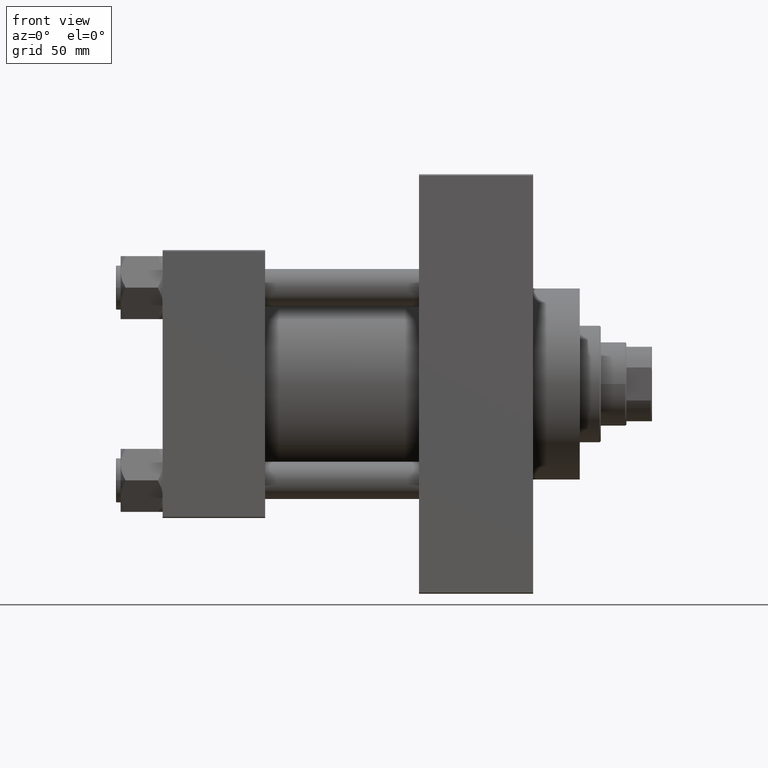
[diagram: clean part render]
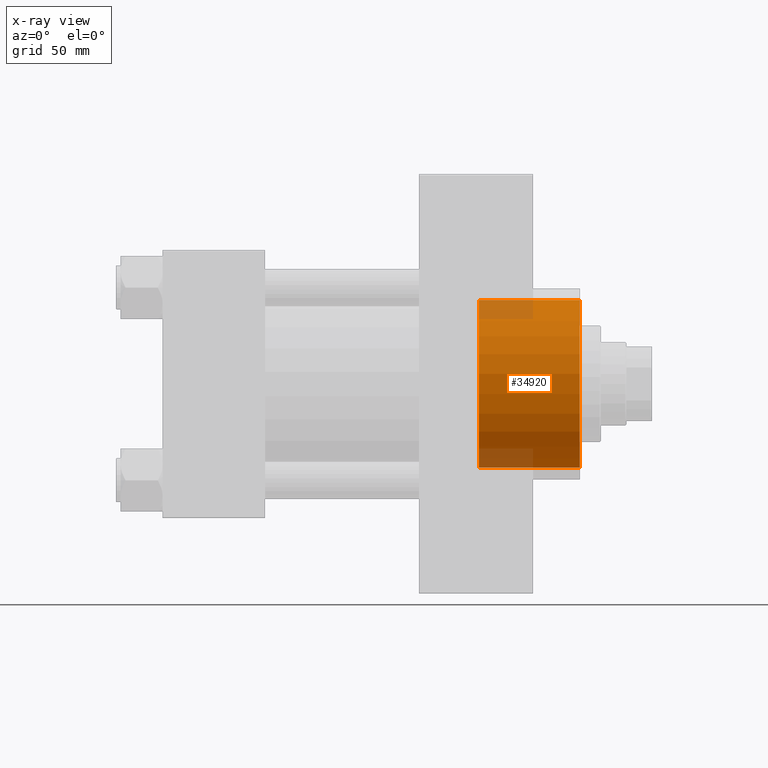
[diagram: x-ray — body ghosted, one internal face saturated and labeled with its STEP entity id]
A machine part, front view, then the same camera in x-ray: the body is ghosted and one INTERNAL B-rep face — a face not visible from any outside direction — is saturated and labeled: STEP entity #34920.
In plain terms, the highlighted cylindrical surface (partial cylindrical patch) has radius 36 mm, axis along (1, 0, 0).
Its self-contained STEP definition (entity closure, byte-faithful):
#2108 = DIRECTION ( 'NONE',  ( 1.000000000000000000, -0.000000000000000000, -0.000000000000000000 ) ) ;
#2164 = VECTOR ( 'NONE', #22269, 1000.000000000000000 ) ;
#3710 = LINE ( 'NONE', #33093, #2164 ) ;
#4273 = AXIS2_PLACEMENT_3D ( 'NONE', #8855, #27394, #12947 ) ;
#5939 = CARTESIAN_POINT ( 'NONE',  ( 135.7400000000000091, 0.000000000000000000, -36.00000000000000000 ) ) ;
#6508 = VERTEX_POINT ( 'NONE', #5939 ) ;
#7086 = DIRECTION ( 'NONE',  ( 0.000000000000000000, 0.000000000000000000, -1.000000000000000000 ) ) ;
#7631 = DIRECTION ( 'NONE',  ( 1.000000000000000000, -0.000000000000000000, -0.000000000000000000 ) ) ;
#8855 = CARTESIAN_POINT ( 'NONE',  ( 135.7400000000000091, 0.000000000000000000, 0.000000000000000000 ) ) ;
#9344 = FACE_OUTER_BOUND ( 'NONE', #35450, .T. ) ;
#10895 = EDGE_CURVE ( 'NONE', #18528, #6508, #13485, .T. ) ;
#12947 = DIRECTION ( 'NONE',  ( 0.000000000000000000, 0.000000000000000000, -1.000000000000000000 ) ) ;
#13485 = CIRCLE ( 'NONE', #4273, 36.00000000000000000 ) ;
#15040 = DIRECTION ( 'NONE',  ( 1.000000000000000000, 0.000000000000000000, 0.000000000000000000 ) ) ;
#15936 = CARTESIAN_POINT ( 'NONE',  ( 135.7400000000000091, 0.000000000000000000, 0.000000000000000000 ) ) ;
#18243 = CARTESIAN_POINT ( 'NONE',  ( 135.7400000000000091, 4.408728476930470856E-15, 36.00000000000000000 ) ) ;
#18528 = VERTEX_POINT ( 'NONE', #40433 ) ;
#19308 = ORIENTED_EDGE ( 'NONE', *, *, #26384, .F. ) ;
#20680 = VECTOR ( 'NONE', #7631, 1000.000000000000000 ) ;
#21566 = CARTESIAN_POINT ( 'NONE',  ( 179.0000000000000000, 0.000000000000000000, 0.000000000000000000 ) ) ;
#22269 = DIRECTION ( 'NONE',  ( 1.000000000000000000, -0.000000000000000000, -0.000000000000000000 ) ) ;
#25383 = VERTEX_POINT ( 'NONE', #47036 ) ;
#26310 = DIRECTION ( 'NONE',  ( 0.000000000000000000, 0.000000000000000000, -1.000000000000000000 ) ) ;
#26384 = EDGE_CURVE ( 'NONE', #6508, #25383, #3710, .T. ) ;
#27394 = DIRECTION ( 'NONE',  ( 1.000000000000000000, 0.000000000000000000, 0.000000000000000000 ) ) ;
#29475 = CIRCLE ( 'NONE', #30236, 36.00000000000000000 ) ;
#29549 = LINE ( 'NONE', #18243, #20680 ) ;
#30036 = ORIENTED_EDGE ( 'NONE', *, *, #43958, .T. ) ;
#30236 = AXIS2_PLACEMENT_3D ( 'NONE', #21566, #15040, #7086 ) ;
#31826 = EDGE_CURVE ( 'NONE', #18528, #41459, #29549, .T. ) ;
#33093 = CARTESIAN_POINT ( 'NONE',  ( 135.7400000000000091, 0.000000000000000000, -36.00000000000000000 ) ) ;
#34920 = ADVANCED_FACE ( 'NONE', ( #9344 ), #37639, .F. ) ;
#35450 = EDGE_LOOP ( 'NONE', ( #36582, #41690, #30036, #19308 ) ) ;
#36582 = ORIENTED_EDGE ( 'NONE', *, *, #10895, .F. ) ;
#37639 = CYLINDRICAL_SURFACE ( 'NONE', #43112, 36.00000000000000000 ) ;
#40433 = CARTESIAN_POINT ( 'NONE',  ( 135.7400000000000091, 4.408728476930470856E-15, 36.00000000000000000 ) ) ;
#41459 = VERTEX_POINT ( 'NONE', #46638 ) ;
#41690 = ORIENTED_EDGE ( 'NONE', *, *, #31826, .T. ) ;
#43112 = AXIS2_PLACEMENT_3D ( 'NONE', #15936, #2108, #26310 ) ;
#43958 = EDGE_CURVE ( 'NONE', #41459, #25383, #29475, .T. ) ;
#46638 = CARTESIAN_POINT ( 'NONE',  ( 179.0000000000000000, 4.408728476930470856E-15, 36.00000000000000000 ) ) ;
#47036 = CARTESIAN_POINT ( 'NONE',  ( 179.0000000000000000, 0.000000000000000000, -36.00000000000000000 ) ) ;